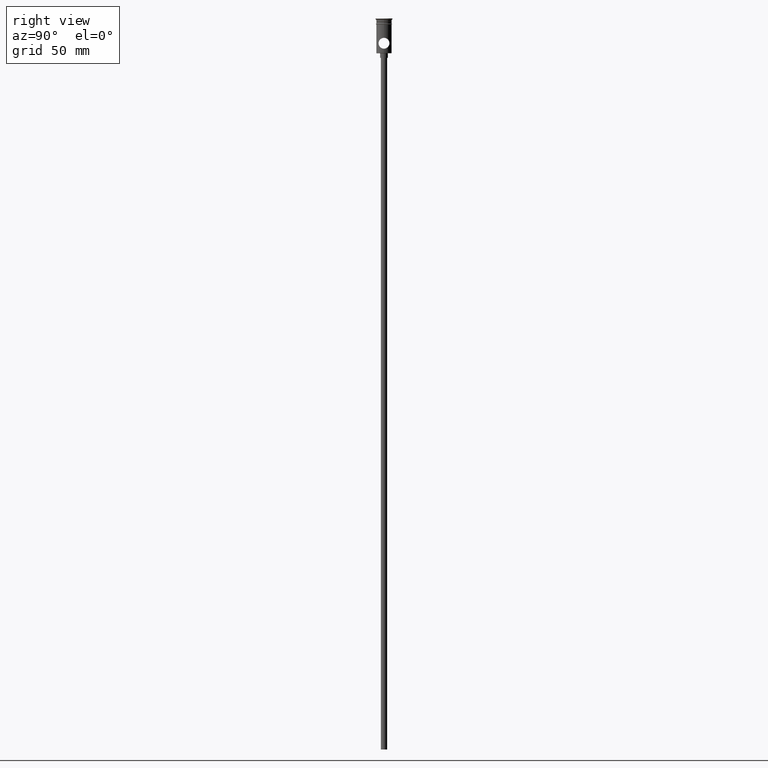
[diagram: clean part render]
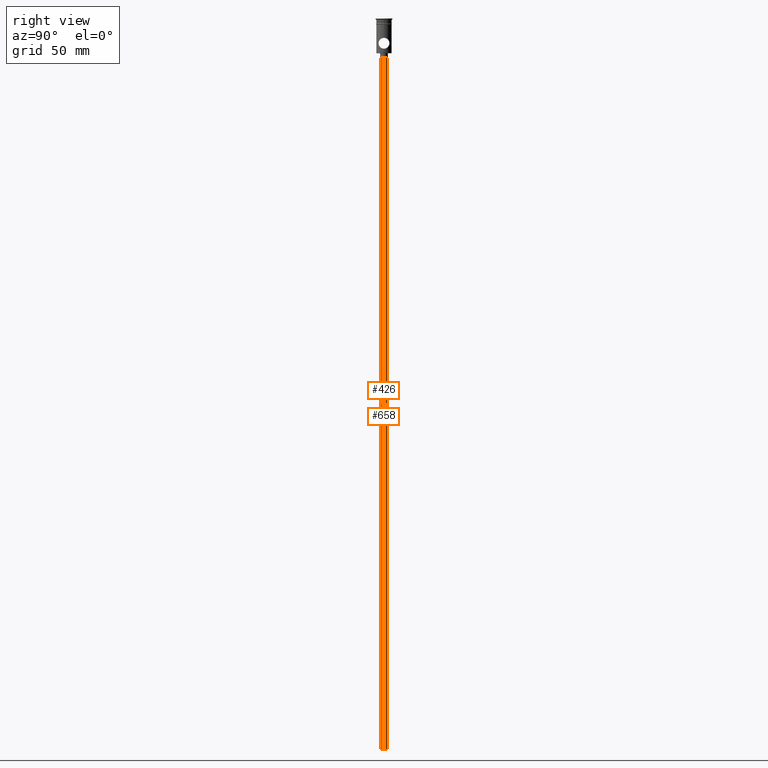
[diagram: same view with one multi-face feature highlighted, each face labeled with its STEP entity id]
A machine part, right view. The highlighted faces form ONE feature: a constant-radius fillet chain: 2 tangent blend faces with common blend radius 2 mm. The faces share edges in the B-rep.
Their STEP definitions:
[1] entity #658 (Cylinder):
#5 = AXIS2_PLACEMENT_3D ( 'NONE', #829, #1287, #279 ) ;
#17 = ORIENTED_EDGE ( 'NONE', *, *, #221, .T. ) ;
#35 = CARTESIAN_POINT ( 'NONE',  ( -2.000000000000000000, 2.449293598294706414E-16, -472.5000000000000568 ) ) ;
#43 = LINE ( 'NONE', #485, #1039 ) ;
#55 = FACE_OUTER_BOUND ( 'NONE', #696, .T. ) ;
#68 = CARTESIAN_POINT ( 'NONE',  ( 2.000000000000000000, 0.000000000000000000, -472.5000000000000568 ) ) ;
#140 = DIRECTION ( 'NONE',  ( 1.000000000000000000, 0.000000000000000000, 0.000000000000000000 ) ) ;
#145 = CARTESIAN_POINT ( 'NONE',  ( 2.000000000000000000, 0.000000000000000000, -25.50000000000000000 ) ) ;
#163 = VERTEX_POINT ( 'NONE', #530 ) ;
#221 = EDGE_CURVE ( 'NONE', #963, #163, #43, .T. ) ;
#222 = ORIENTED_EDGE ( 'NONE', *, *, #677, .F. ) ;
#255 = DIRECTION ( 'NONE',  ( -0.000000000000000000, -0.000000000000000000, 1.000000000000000000 ) ) ;
#279 = DIRECTION ( 'NONE',  ( -1.000000000000000000, 0.000000000000000000, 0.000000000000000000 ) ) ;
#333 = DIRECTION ( 'NONE',  ( -0.000000000000000000, -0.000000000000000000, 1.000000000000000000 ) ) ;
#367 = DIRECTION ( 'NONE',  ( -1.000000000000000000, 0.000000000000000000, 0.000000000000000000 ) ) ;
#485 = CARTESIAN_POINT ( 'NONE',  ( -2.000000000000000000, 2.449293598294706414E-16, -472.5000000000000568 ) ) ;
#530 = CARTESIAN_POINT ( 'NONE',  ( -2.000000000000000000, 2.449293598294706414E-16, -25.50000000000000000 ) ) ;
#584 = AXIS2_PLACEMENT_3D ( 'NONE', #1017, #1455, #367 ) ;
#629 = CIRCLE ( 'NONE', #5, 2.000000000000000000 ) ;
#638 = ORIENTED_EDGE ( 'NONE', *, *, #711, .T. ) ;
#658 = ADVANCED_FACE ( 'NONE', ( #55 ), #1399, .T. ) ;
#677 = EDGE_CURVE ( 'NONE', #1390, #1153, #703, .T. ) ;
#696 = EDGE_LOOP ( 'NONE', ( #1082, #17, #638, #222 ) ) ;
#703 = LINE ( 'NONE', #791, #1181 ) ;
#711 = EDGE_CURVE ( 'NONE', #163, #1153, #1290, .T. ) ;
#791 = CARTESIAN_POINT ( 'NONE',  ( 2.000000000000000000, 0.000000000000000000, -472.5000000000000568 ) ) ;
#829 = CARTESIAN_POINT ( 'NONE',  ( 0.000000000000000000, 0.000000000000000000, -472.5000000000000568 ) ) ;
#836 = CARTESIAN_POINT ( 'NONE',  ( 0.000000000000000000, 0.000000000000000000, -472.5000000000000568 ) ) ;
#963 = VERTEX_POINT ( 'NONE', #35 ) ;
#1017 = CARTESIAN_POINT ( 'NONE',  ( 0.000000000000000000, 0.000000000000000000, -25.50000000000000000 ) ) ;
#1039 = VECTOR ( 'NONE', #255, 1000.000000000000000 ) ;
#1064 = AXIS2_PLACEMENT_3D ( 'NONE', #836, #1292, #140 ) ;
#1082 = ORIENTED_EDGE ( 'NONE', *, *, #1107, .F. ) ;
#1107 = EDGE_CURVE ( 'NONE', #963, #1390, #629, .T. ) ;
#1153 = VERTEX_POINT ( 'NONE', #145 ) ;
#1181 = VECTOR ( 'NONE', #333, 1000.000000000000000 ) ;
#1287 = DIRECTION ( 'NONE',  ( 0.000000000000000000, 0.000000000000000000, -1.000000000000000000 ) ) ;
#1290 = CIRCLE ( 'NONE', #584, 2.000000000000000000 ) ;
#1292 = DIRECTION ( 'NONE',  ( -0.000000000000000000, -0.000000000000000000, 1.000000000000000000 ) ) ;
#1390 = VERTEX_POINT ( 'NONE', #68 ) ;
#1399 = CYLINDRICAL_SURFACE ( 'NONE', #1064, 2.000000000000000000 ) ;
#1455 = DIRECTION ( 'NONE',  ( 0.000000000000000000, 0.000000000000000000, -1.000000000000000000 ) ) ;
[2] entity #426 (Cylinder):
#35 = CARTESIAN_POINT ( 'NONE',  ( -2.000000000000000000, 2.449293598294706414E-16, -472.5000000000000568 ) ) ;
#43 = LINE ( 'NONE', #485, #1039 ) ;
#68 = CARTESIAN_POINT ( 'NONE',  ( 2.000000000000000000, 0.000000000000000000, -472.5000000000000568 ) ) ;
#145 = CARTESIAN_POINT ( 'NONE',  ( 2.000000000000000000, 0.000000000000000000, -25.50000000000000000 ) ) ;
#148 = DIRECTION ( 'NONE',  ( 0.000000000000000000, 0.000000000000000000, -1.000000000000000000 ) ) ;
#158 = AXIS2_PLACEMENT_3D ( 'NONE', #1315, #312, #1214 ) ;
#163 = VERTEX_POINT ( 'NONE', #530 ) ;
#186 = AXIS2_PLACEMENT_3D ( 'NONE', #194, #654, #1097 ) ;
#194 = CARTESIAN_POINT ( 'NONE',  ( 0.000000000000000000, 0.000000000000000000, -472.5000000000000568 ) ) ;
#221 = EDGE_CURVE ( 'NONE', #963, #163, #43, .T. ) ;
#255 = DIRECTION ( 'NONE',  ( -0.000000000000000000, -0.000000000000000000, 1.000000000000000000 ) ) ;
#263 = CARTESIAN_POINT ( 'NONE',  ( 0.000000000000000000, 0.000000000000000000, -25.50000000000000000 ) ) ;
#312 = DIRECTION ( 'NONE',  ( -0.000000000000000000, -0.000000000000000000, 1.000000000000000000 ) ) ;
#316 = ORIENTED_EDGE ( 'NONE', *, *, #677, .T. ) ;
#333 = DIRECTION ( 'NONE',  ( -0.000000000000000000, -0.000000000000000000, 1.000000000000000000 ) ) ;
#378 = ORIENTED_EDGE ( 'NONE', *, *, #1128, .T. ) ;
#426 = ADVANCED_FACE ( 'NONE', ( #976 ), #863, .T. ) ;
#446 = CIRCLE ( 'NONE', #565, 2.000000000000000000 ) ;
#485 = CARTESIAN_POINT ( 'NONE',  ( -2.000000000000000000, 2.449293598294706414E-16, -472.5000000000000568 ) ) ;
#530 = CARTESIAN_POINT ( 'NONE',  ( -2.000000000000000000, 2.449293598294706414E-16, -25.50000000000000000 ) ) ;
#554 = EDGE_LOOP ( 'NONE', ( #1023, #748, #316, #378 ) ) ;
#565 = AXIS2_PLACEMENT_3D ( 'NONE', #263, #148, #825 ) ;
#654 = DIRECTION ( 'NONE',  ( 0.000000000000000000, 0.000000000000000000, -1.000000000000000000 ) ) ;
#677 = EDGE_CURVE ( 'NONE', #1390, #1153, #703, .T. ) ;
#699 = CIRCLE ( 'NONE', #186, 2.000000000000000000 ) ;
#701 = EDGE_CURVE ( 'NONE', #1390, #963, #699, .T. ) ;
#703 = LINE ( 'NONE', #791, #1181 ) ;
#748 = ORIENTED_EDGE ( 'NONE', *, *, #701, .F. ) ;
#791 = CARTESIAN_POINT ( 'NONE',  ( 2.000000000000000000, 0.000000000000000000, -472.5000000000000568 ) ) ;
#825 = DIRECTION ( 'NONE',  ( -1.000000000000000000, 0.000000000000000000, 0.000000000000000000 ) ) ;
#863 = CYLINDRICAL_SURFACE ( 'NONE', #158, 2.000000000000000000 ) ;
#963 = VERTEX_POINT ( 'NONE', #35 ) ;
#976 = FACE_OUTER_BOUND ( 'NONE', #554, .T. ) ;
#1023 = ORIENTED_EDGE ( 'NONE', *, *, #221, .F. ) ;
#1039 = VECTOR ( 'NONE', #255, 1000.000000000000000 ) ;
#1097 = DIRECTION ( 'NONE',  ( -1.000000000000000000, 0.000000000000000000, 0.000000000000000000 ) ) ;
#1128 = EDGE_CURVE ( 'NONE', #1153, #163, #446, .T. ) ;
#1153 = VERTEX_POINT ( 'NONE', #145 ) ;
#1181 = VECTOR ( 'NONE', #333, 1000.000000000000000 ) ;
#1214 = DIRECTION ( 'NONE',  ( 1.000000000000000000, 0.000000000000000000, 0.000000000000000000 ) ) ;
#1315 = CARTESIAN_POINT ( 'NONE',  ( 0.000000000000000000, 0.000000000000000000, -472.5000000000000568 ) ) ;
#1390 = VERTEX_POINT ( 'NONE', #68 ) ;